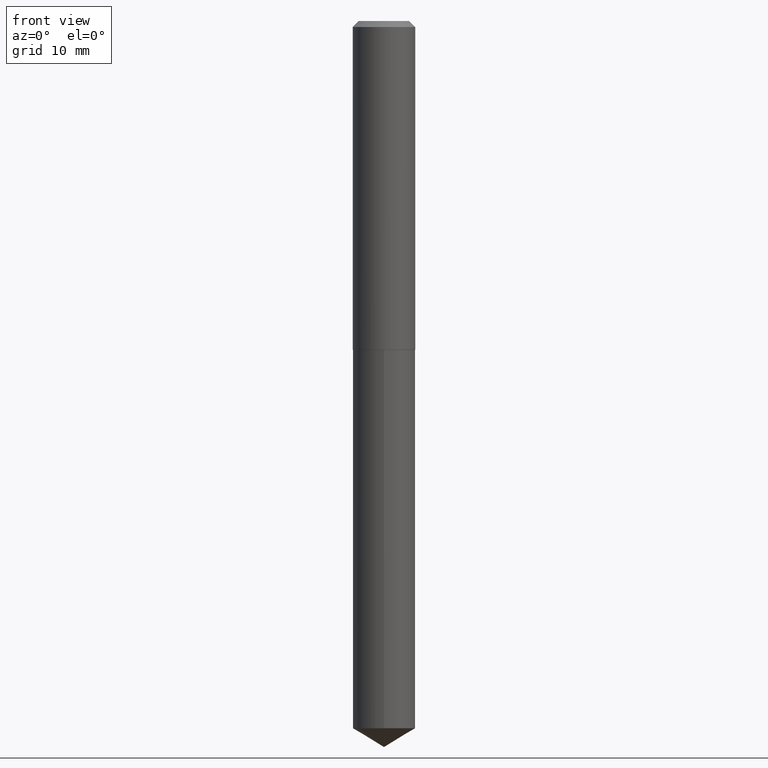
[diagram: clean part render]
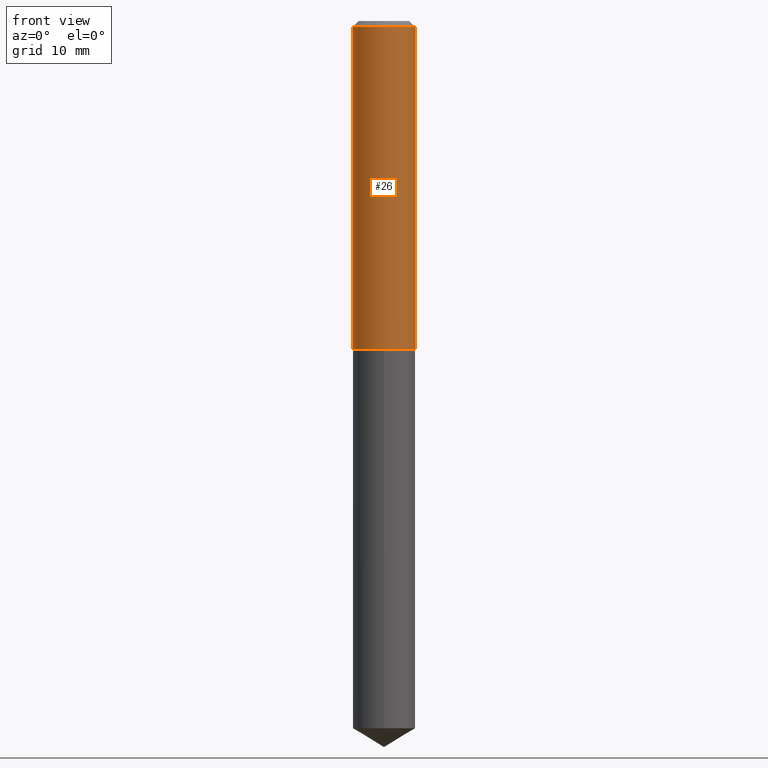
[diagram: same view with one face highlighted and labeled with its STEP entity id]
A machine part, front view. The second image highlights one B-rep face of the part: STEP entity #26.
In plain terms, the highlighted cylindrical surface (edge-blend (fillet) strip) has radius 4.1021 mm, axis along (-0, 0, 1).
Its self-contained STEP definition (entity closure, byte-faithful):
#3 = CARTESIAN_POINT ( 'NONE',  ( 4.151183298499269552E-29, -5.926789572686240485E-15, -1.697500000000000231 ) ) ;
#13 = ORIENTED_EDGE ( 'NONE', *, *, #166, .F. ) ;
#26 = ADVANCED_FACE ( 'NONE', ( #99 ), #124, .T. ) ;
#30 = CARTESIAN_POINT ( 'NONE',  ( 7.642090019328604414E-31, -1.091087918388490513E-16, -0.03125000000000021511 ) ) ;
#34 = LINE ( 'NONE', #332, #149 ) ;
#49 = EDGE_CURVE ( 'NONE', #70, #286, #328, .T. ) ;
#52 = EDGE_CURVE ( 'NONE', #138, #205, #34, .T. ) ;
#65 = CARTESIAN_POINT ( 'NONE',  ( 0.000000000000000000, 0.000000000000000000, 0.000000000000000000 ) ) ;
#68 = CARTESIAN_POINT ( 'NONE',  ( -0.1615000000000000047, -1.870422664009981579E-15, -0.03125000000000021511 ) ) ;
#70 = VERTEX_POINT ( 'NONE', #300 ) ;
#78 = CIRCLE ( 'NONE', #134, 0.1615000000000001990 ) ;
#97 = AXIS2_PLACEMENT_3D ( 'NONE', #65, #162, #125 ) ;
#99 = FACE_OUTER_BOUND ( 'NONE', #253, .T. ) ;
#101 = CARTESIAN_POINT ( 'NONE',  ( -0.1615000000000001990, -4.779263054433677272E-15, -1.697500000000000231 ) ) ;
#124 = CYLINDRICAL_SURFACE ( 'NONE', #97, 0.1615000000000001157 ) ;
#125 = DIRECTION ( 'NONE',  ( 1.000000000000000000, -6.982962677686265922E-15, 4.876176775795935232E-29 ) ) ;
#132 = DIRECTION ( 'NONE',  ( 1.000000000000000000, -6.982962677686266711E-15, 0.000000000000000000 ) ) ;
#134 = AXIS2_PLACEMENT_3D ( 'NONE', #3, #279, #132 ) ;
#138 = VERTEX_POINT ( 'NONE', #101 ) ;
#149 = VECTOR ( 'NONE', #358, 39.37007874015748143 ) ;
#156 = DIRECTION ( 'NONE',  ( -2.445468806185136597E-29, 3.491481338843145583E-15, 1.000000000000000000 ) ) ;
#159 = DIRECTION ( 'NONE',  ( 1.000000000000000000, -6.982962677686266711E-15, 0.000000000000000000 ) ) ;
#162 = DIRECTION ( 'NONE',  ( -2.445468806185136597E-29, 3.491481338843145583E-15, 1.000000000000000000 ) ) ;
#166 = EDGE_CURVE ( 'NONE', #205, #286, #298, .T. ) ;
#185 = DIRECTION ( 'NONE',  ( -2.445468806185136877E-29, 3.491481338843145188E-15, 1.000000000000000000 ) ) ;
#192 = VECTOR ( 'NONE', #185, 39.37007874015748143 ) ;
#205 = VERTEX_POINT ( 'NONE', #68 ) ;
#213 = CARTESIAN_POINT ( 'NONE',  ( 0.1615000000000001157, -1.127748472446332721E-15, 7.875025492910441462E-30 ) ) ;
#233 = EDGE_CURVE ( 'NONE', #138, #70, #78, .T. ) ;
#253 = EDGE_LOOP ( 'NONE', ( #365, #355, #317, #13 ) ) ;
#279 = DIRECTION ( 'NONE',  ( -2.445468806185136597E-29, 3.491481338843145583E-15, 1.000000000000000000 ) ) ;
#286 = VERTEX_POINT ( 'NONE', #344 ) ;
#298 = CIRCLE ( 'NONE', #335, 0.1615000000000000047 ) ;
#300 = CARTESIAN_POINT ( 'NONE',  ( 0.1615000000000001990, -7.054538045132573600E-15, -1.697500000000000231 ) ) ;
#317 = ORIENTED_EDGE ( 'NONE', *, *, #49, .T. ) ;
#328 = LINE ( 'NONE', #213, #192 ) ;
#332 = CARTESIAN_POINT ( 'NONE',  ( -0.1615000000000001157, 1.147526518252562622E-15, -7.944080170761677510E-30 ) ) ;
#335 = AXIS2_PLACEMENT_3D ( 'NONE', #30, #156, #159 ) ;
#344 = CARTESIAN_POINT ( 'NONE',  ( 0.1615000000000000047, -1.236857264285181230E-15, -0.03125000000000021511 ) ) ;
#355 = ORIENTED_EDGE ( 'NONE', *, *, #233, .T. ) ;
#358 = DIRECTION ( 'NONE',  ( -2.445468806185136877E-29, 3.491481338843145188E-15, 1.000000000000000000 ) ) ;
#365 = ORIENTED_EDGE ( 'NONE', *, *, #52, .F. ) ;